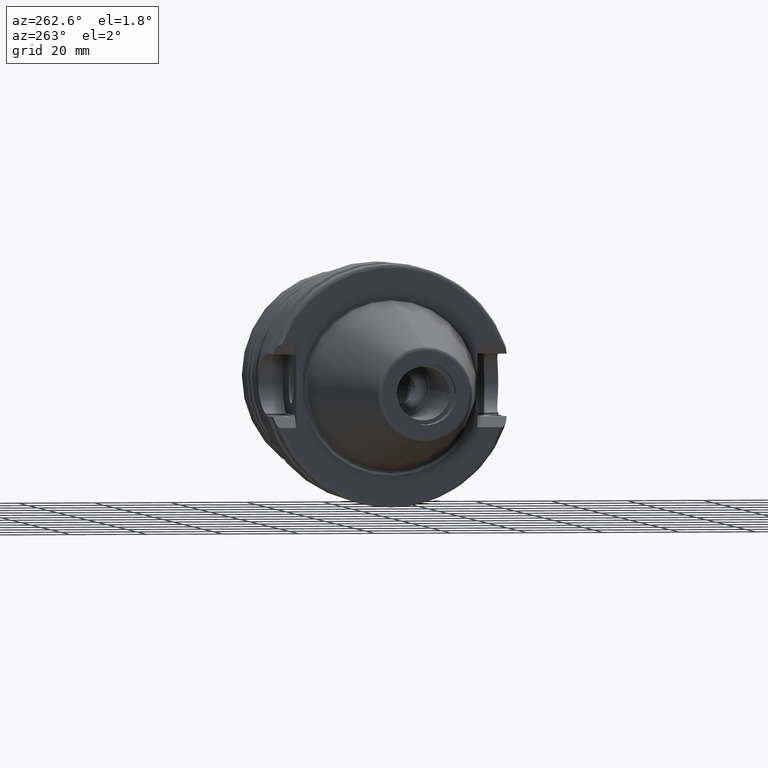
[diagram: clean part render]
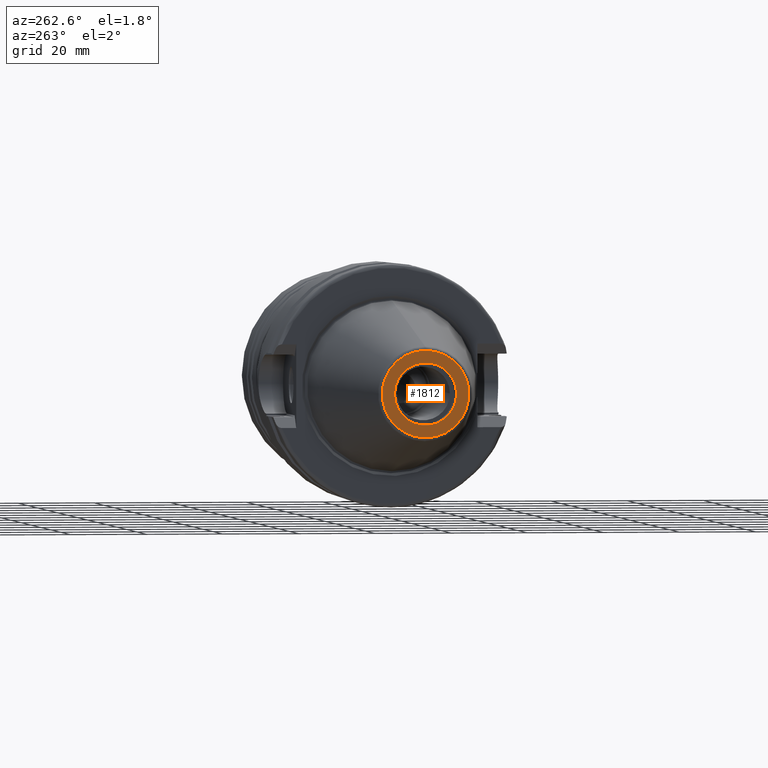
[diagram: same view with one face highlighted and labeled with its STEP entity id]
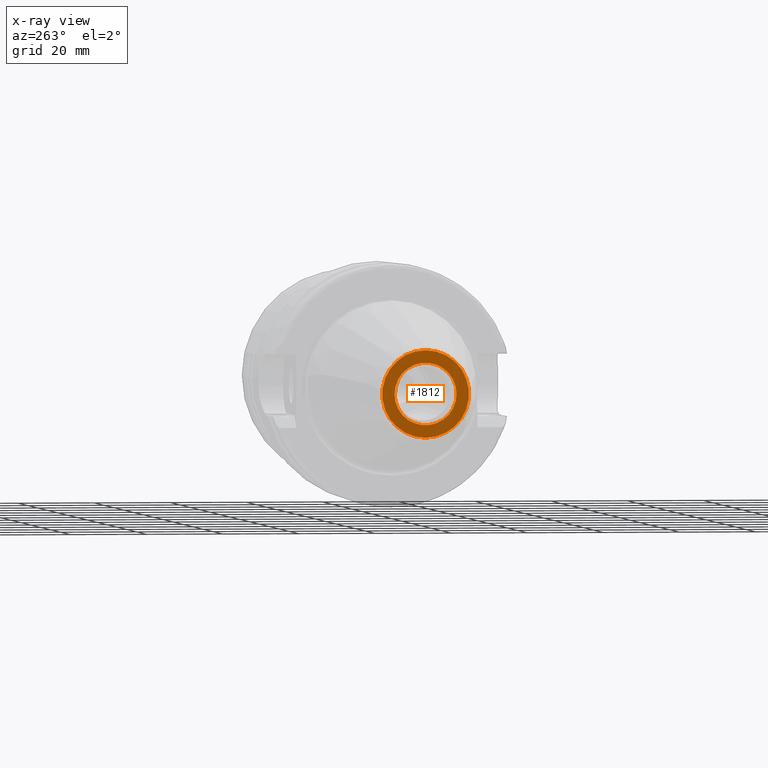
[diagram: x-ray of the same camera — body ghosted, the highlighted face saturated]
A machine part, auxiliary view. The second image highlights one B-rep face of the part: STEP entity #1812.
The next image is the same camera in x-ray: the body ghosted, the highlighted face saturated — about 0% of this face is hidden behind the body in this view.
In plain terms, the highlighted planar face has unit normal (1, 0, 0).
Its self-contained STEP definition (entity closure, byte-faithful):
#17=CARTESIAN_POINT('',(-6.825E1,0.E0,0.E0));
#18=DIRECTION('',(-1.E0,0.E0,0.E0));
#19=DIRECTION('',(0.E0,1.E0,0.E0));
#20=AXIS2_PLACEMENT_3D('',#17,#18,#19);
#22=CARTESIAN_POINT('',(-6.825E1,0.E0,0.E0));
#23=DIRECTION('',(-1.E0,0.E0,0.E0));
#24=DIRECTION('',(0.E0,-1.E0,0.E0));
#25=AXIS2_PLACEMENT_3D('',#22,#23,#24);
#27=CARTESIAN_POINT('',(-6.825E1,0.E0,0.E0));
#28=DIRECTION('',(-1.E0,0.E0,0.E0));
#29=DIRECTION('',(0.E0,0.E0,-1.E0));
#30=AXIS2_PLACEMENT_3D('',#27,#28,#29);
#32=CARTESIAN_POINT('',(-6.825E1,0.E0,0.E0));
#33=DIRECTION('',(-1.E0,0.E0,0.E0));
#34=DIRECTION('',(0.E0,0.E0,1.E0));
#35=AXIS2_PLACEMENT_3D('',#32,#33,#34);
#1527=CARTESIAN_POINT('',(-6.825E1,8.15E0,0.E0));
#1528=CARTESIAN_POINT('',(-6.825E1,-8.15E0,0.E0));
#1529=VERTEX_POINT('',#1527);
#1530=VERTEX_POINT('',#1528);
#1535=CARTESIAN_POINT('',(-6.825E1,0.E0,-1.140713176206E1));
#1536=CARTESIAN_POINT('',(-6.825E1,0.E0,1.140713176206E1));
#1537=VERTEX_POINT('',#1535);
#1538=VERTEX_POINT('',#1536);
#1796=CARTESIAN_POINT('',(-6.825E1,0.E0,0.E0));
#1797=DIRECTION('',(1.E0,0.E0,0.E0));
#1798=DIRECTION('',(0.E0,0.E0,1.E0));
#1799=AXIS2_PLACEMENT_3D('',#1796,#1797,#1798);
#1800=PLANE('',#1799);
#1802=ORIENTED_EDGE('',*,*,#1801,.F.);
#1803=ORIENTED_EDGE('',*,*,#1786,.F.);
#1804=EDGE_LOOP('',(#1802,#1803));
#1805=FACE_OUTER_BOUND('',#1804,.F.);
#1807=ORIENTED_EDGE('',*,*,#1806,.T.);
#1809=ORIENTED_EDGE('',*,*,#1808,.T.);
#1810=EDGE_LOOP('',(#1807,#1809));
#1811=FACE_BOUND('',#1810,.F.);
#1812=ADVANCED_FACE('',(#1805,#1811),#1800,.F.);
#21=CIRCLE('',#20,8.15E0);
#26=CIRCLE('',#25,8.15E0);
#31=CIRCLE('',#30,1.140713176206E1);
#36=CIRCLE('',#35,1.140713176206E1);
#1786=EDGE_CURVE('',#1538,#1537,#36,.T.);
#1801=EDGE_CURVE('',#1537,#1538,#31,.T.);
#1806=EDGE_CURVE('',#1529,#1530,#21,.T.);
#1808=EDGE_CURVE('',#1530,#1529,#26,.T.);